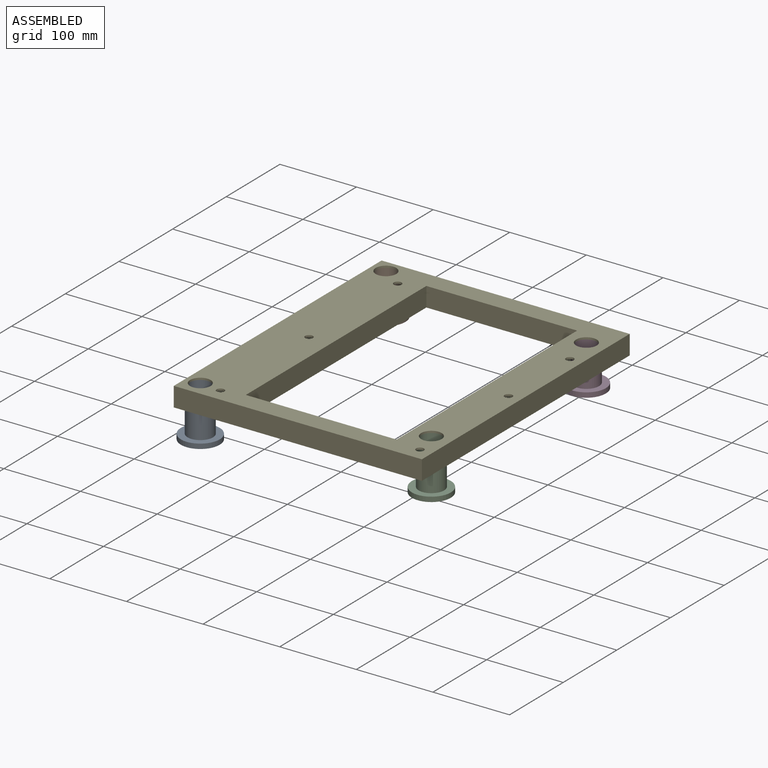
[diagram: assembled view]
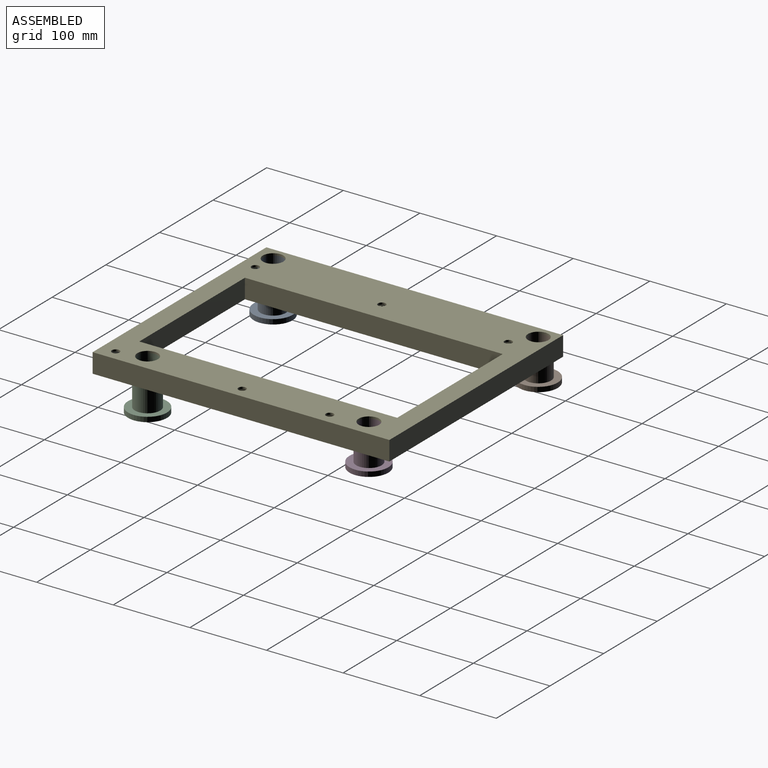
[diagram: assembled view, second angle]
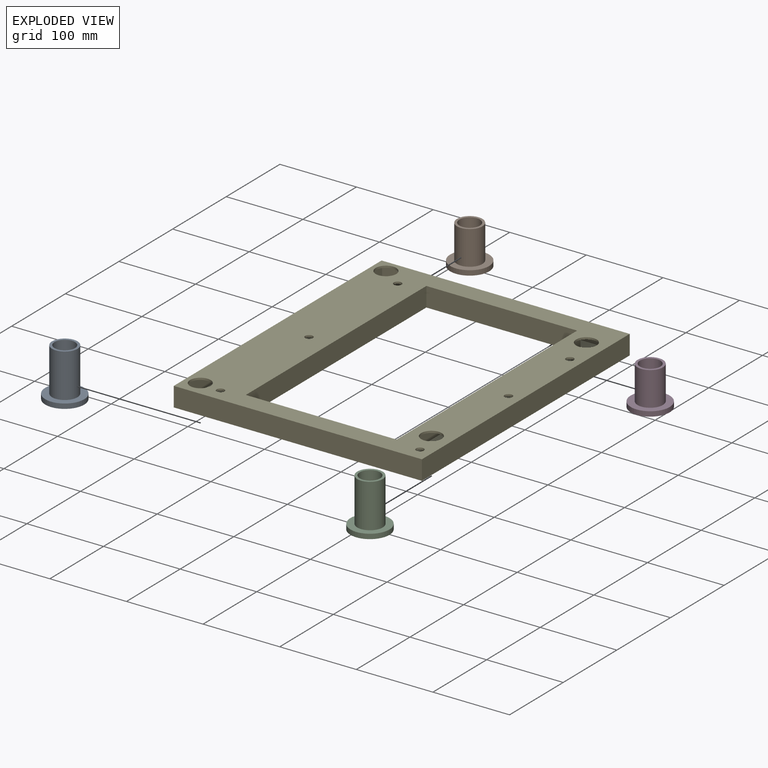
[diagram: exploded view]
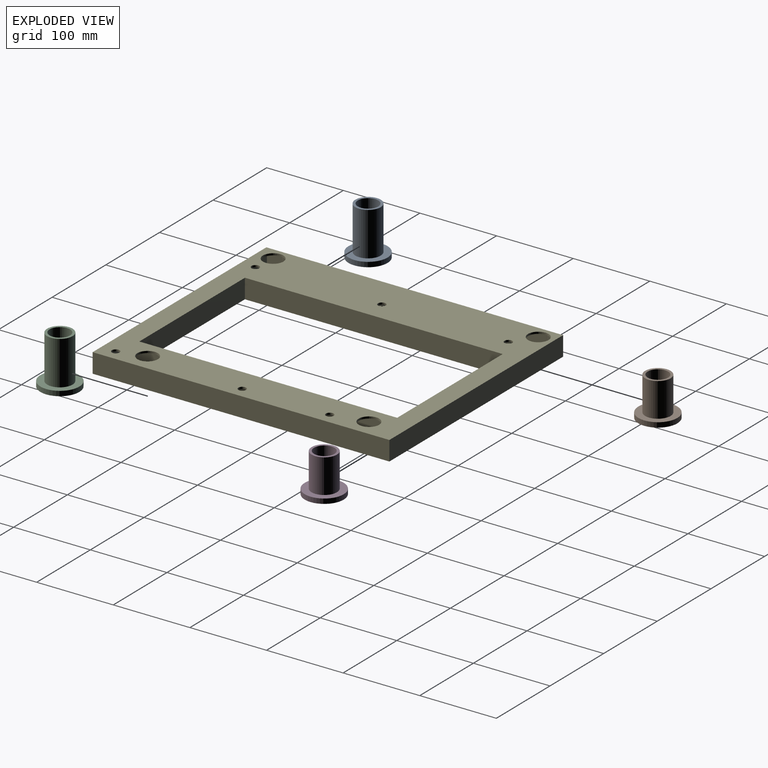
[diagram: exploded view, second angle]
ASSEMBLY  parts=5 mates=4
PART A: 8 faces, bbox 50.8x50.8x63.5 mm
  f0: cylinder r=13.4mm len=57.15mm, axis (0,0,-1), area 4811.2mm2, adj f2,f6
  f1: cylinder r=16.57mm len=57.15mm, axis (0,0,-1), area 5951.3mm2, adj f2,f3
  f2: plane 33.15x33.15mm, normal (0,0,1), area 299mm2, adj f0,f1
  f3: plane 50.8x50.8mm, normal (0,0,1), area 1163.9mm2, adj f1,f5
  f4: plane 50.8x50.8mm, normal (0,0,-1), area 1900.2mm2, adj f5,f7
  f5: cylinder r=25.4mm len=50.8mm, axis (0,0,1), area 1013.4mm2, adj f3,f4
  f6: plane 26.8x26.8mm, normal (0,0,1), area 437.3mm2, adj f0,f7
  f7: cylinder r=6.35mm len=12.7mm, axis (0,0,-1), area 253.4mm2, adj f4,f6
PART B: 8 faces, bbox 50.8x50.8x50.8 mm
  f0: cylinder r=13.4mm len=44.45mm, axis (0,0,-1), area 3742mm2, adj f2,f6
  f1: cylinder r=16.57mm len=44.45mm, axis (0,0,-1), area 4628.8mm2, adj f2,f3
  f2: plane 33.15x33.15mm, normal (0,0,1), area 299mm2, adj f0,f1
  f3: plane 50.8x50.8mm, normal (0,0,1), area 1163.9mm2, adj f1,f5
  f4: plane 50.8x50.8mm, normal (0,0,-1), area 1900.2mm2, adj f5,f7
  f5: cylinder r=25.4mm len=50.8mm, axis (0,0,1), area 1013.4mm2, adj f3,f4
  f6: plane 26.8x26.8mm, normal (0,0,1), area 437.3mm2, adj f0,f7
  f7: cylinder r=6.35mm len=12.7mm, axis (0,0,-1), area 253.4mm2, adj f4,f6
PART C: same geometry as A
PART D: same geometry as B
PART E: 38 faces, bbox 323.9x387.4x25.4 mm
  f0: plane 343.18x20.32mm, normal (1,0,0), area 6973.3mm2, adj f12,f13,f15,f16
  f1: plane 20.32x18.24mm, normal (1,0,0), area 370.5mm2, adj f5,f12,f13,f15
  f2: plane 300.81x20.32mm, normal (0,-1,0), area 6112.5mm2, adj f6,f12,f13,f16
  f3: plane 15.06x15.06mm, normal (0,0,1), area 57mm2, adj f4,f11,f16
  f4: plane 20.32x15.06mm, normal (1,0,0), area 306mm2, adj f3,f11,f12,f16
  f5: plane 318.77x20.32mm, normal (0,1,0), area 6477.4mm2, adj f1,f6,f12,f13
  f6: plane 382.27x20.32mm, normal (-1,0,0), area 7767.7mm2, adj f2,f5,f12,f13
  f7: plane 201.93x20.32mm, normal (0,-1,0), area 4103.2mm2, adj f8,f10,f12,f13
  f8: plane 341.63x20.32mm, normal (-1,0,0), area 6941.9mm2, adj f7,f9,f12,f13
  f9: plane 201.93x20.32mm, normal (0,1,0), area 4103.2mm2, adj f8,f10,f12,f13
  f10: plane 341.63x20.32mm, normal (1,0,0), area 6941.9mm2, adj f7,f9,f12,f13
  f11: plane 20.32x15.06mm, normal (0,-1,0), area 306mm2, adj f3,f4,f12,f16
  f12: plane 382.33x318.83mm, normal (0,0,-1), area 50136.1mm2, adj f0,f1,f2,f4,f5,f6,f7,f8
  f13: plane 382.27x318.77mm, normal (0,0,1), area 49362.5mm2, adj f0,f1,f2,f5,f6,f7,f8,f9
  f14: cylinder r=16.57mm len=33.15mm, axis (0,0,-1), area 264.5mm2, adj f13,f27
  f15: cylinder r=16.57mm len=33.15mm, axis (0,0,-1), area 323.5mm2, adj f0,f1,f12,f13,f27
  f16: cylinder r=16.57mm len=33.15mm, axis (0,0,-1), area 382.5mm2, adj f0,f2,f3,f4,f11,f12,f13,f27
  f17: cylinder r=16.57mm len=33.15mm, axis (0,0,-1), area 264.5mm2, adj f13,f27
  f18: plane 387.35x25.4mm, normal (-1,0,0), area 9838.7mm2, adj f19,f25,f26,f27
  f19: plane 323.85x25.4mm, normal (0,-1,0), area 8225.8mm2, adj f18,f20,f26,f27
  f20: plane 387.35x25.4mm, normal (1,0,0), area 9838.7mm2, adj f19,f25,f26,f27
  f21: plane 196.85x25.4mm, normal (0,1,0), area 5000mm2, adj f22,f24,f26,f27
  f22: plane 336.55x25.4mm, normal (1,0,0), area 8548.4mm2, adj f21,f23,f26,f27
  f23: plane 196.85x25.4mm, normal (0,-1,0), area 5000mm2, adj f22,f24,f26,f27
  f24: plane 336.55x25.4mm, normal (-1,0,0), area 8548.4mm2, adj f21,f23,f26,f27
  f25: plane 323.85x25.4mm, normal (0,1,0), area 8225.8mm2, adj f18,f20,f26,f27
  f26: plane 387.35x323.85mm, normal (0,0,1), area 56458.3mm2, adj f18,f19,f20,f21,f22,f23,f24,f25
  f27: plane 387.35x323.85mm, normal (0,0,-1), area 55741.7mm2, adj f14,f15,f16,f17,f18,f19,f20,f21
  f28: cylinder r=13.4mm len=26.8mm, axis (0,0,1), area 213.8mm2, adj f12,f26
  f29: cylinder r=13.4mm len=26.8mm, axis (0,0,1), area 213.8mm2, adj f12,f26
  f30: cylinder r=13.4mm len=26.8mm, axis (0,0,1), area 213.8mm2, adj f12,f26
  f31: cylinder r=13.4mm len=26.8mm, axis (0,0,1), area 213.8mm2, adj f12,f26
  f32: cylinder r=5.04mm len=10.08mm, axis (0,0,1), area 80.5mm2, adj f12,f26
  f33: cylinder r=5.04mm len=10.08mm, axis (0,0,1), area 80.5mm2, adj f12,f26
  f34: cylinder r=5.04mm len=10.08mm, axis (0,0,1), area 80.5mm2, adj f12,f26
  f35: cylinder r=5.04mm len=10.08mm, axis (0,0,1), area 80.5mm2, adj f12,f26
  f36: cylinder r=5.04mm len=10.08mm, axis (0,0,1), area 80.5mm2, adj f12,f26
  f37: cylinder r=5.04mm len=10.08mm, axis (0,0,1), area 80.5mm2, adj f12,f26
PLACE A t=(-103.8,-214.1,-136.55)mm
PLACE B t=(-103.8,131.98,-123.85)mm
PLACE C t=(175.6,-182.35,-136.55)mm
PLACE D t=(175.6,106.58,-123.85)mm
PLACE E t=(-122.85,151.03,-102.26)mm
MATE fastened B.f0 <-> E.f16  axis (0,0,1) through (-103.8,131.98,-79.4)mm
MATE fastened C.f0 <-> E.f17  axis (0,0,1) through (175.6,-182.35,-79.4)mm
MATE fastened A.f0 <-> E.f15  axis (0,0,1) through (-103.8,-214.1,-79.4)mm
MATE fastened D.f0 <-> E.f14  axis (0,0,1) through (175.6,106.58,-79.4)mm
